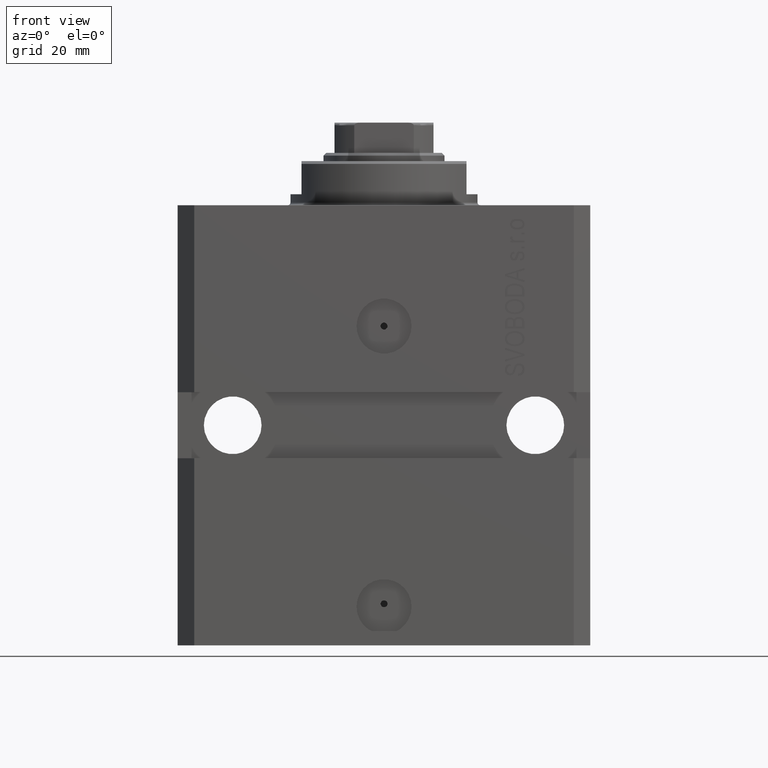
[diagram: clean part render]
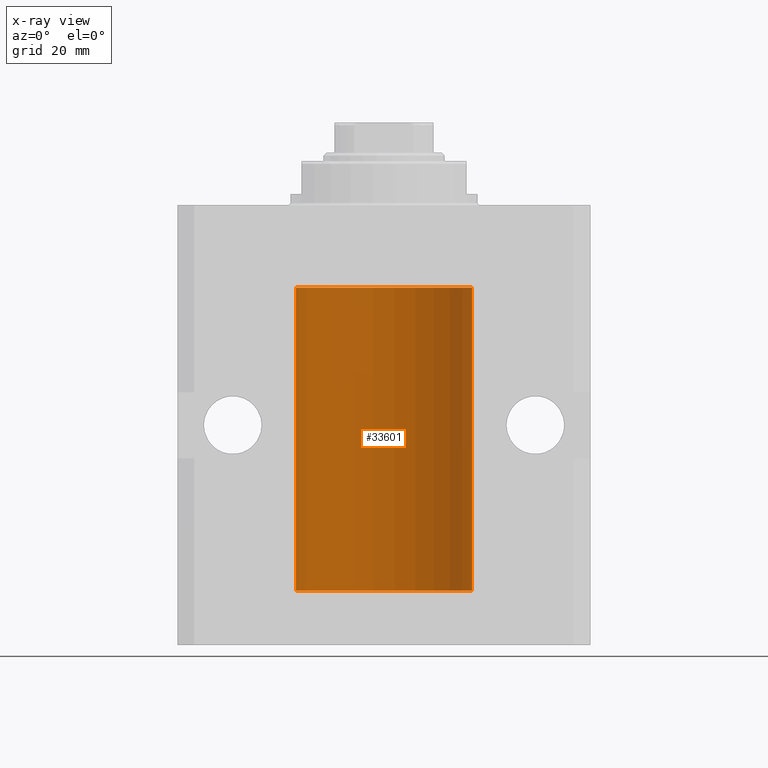
[diagram: x-ray — body ghosted, one internal face saturated and labeled with its STEP entity id]
A machine part, front view, then the same camera in x-ray: the body is ghosted and one INTERNAL B-rep face — a face not visible from any outside direction — is saturated and labeled: STEP entity #33601.
In plain terms, the highlighted cylindrical surface (partial cylindrical patch) has radius 16 mm, axis along (0, 0, 1).
Its self-contained STEP definition (entity closure, byte-faithful):
#5 = ORIENTED_EDGE ( 'NONE', *, *, #40359, .T. ) ;
#52 = CIRCLE ( 'NONE', #34611, 16.00000000000000000 ) ;
#96 = CARTESIAN_POINT ( 'NONE',  ( 16.00000000000000000, 0.000000000000000000, -70.09999999999999432 ) ) ;
#141 = CARTESIAN_POINT ( 'NONE',  ( -15.98779057735153586, 0.6249419637998054888, -67.83670145863507628 ) ) ;
#307 = CARTESIAN_POINT ( 'NONE',  ( -15.99711699979842017, 0.3253759916140657737, -22.55856151623175521 ) ) ;
#322 = LINE ( 'NONE', #96, #13743 ) ;
#586 = CARTESIAN_POINT ( 'NONE',  ( -15.99934216141748244, 0.1636497843296345067, -67.39126528029308361 ) ) ;
#1225 = CARTESIAN_POINT ( 'NONE',  ( 16.00000000000000000, 0.000000000000000000, -70.09999999999999432 ) ) ;
#1480 = VERTEX_POINT ( 'NONE', #16913 ) ;
#1690 = DIRECTION ( 'NONE',  ( -0.000000000000000000, -0.000000000000000000, 1.000000000000000000 ) ) ;
#1827 = CARTESIAN_POINT ( 'NONE',  ( 16.00000000000000000, 0.000000000000000000, -70.09999999999999432 ) ) ;
#3401 = CARTESIAN_POINT ( 'NONE',  ( 15.99707608081894783, 0.3151028052309810534, -22.54594170697727762 ) ) ;
#3627 = CARTESIAN_POINT ( 'NONE',  ( 16.00000000000000711, 0.08261762387942241104, -22.62499999999997158 ) ) ;
#4026 = CARTESIAN_POINT ( 'NONE',  ( 15.99707608081895138, 0.3151028052310259620, -68.54594170697733091 ) ) ;
#4123 = CARTESIAN_POINT ( 'NONE',  ( -15.98844267028591482, 0.6088369347963316081, -22.16324735024328518 ) ) ;
#4418 = EDGE_CURVE ( 'NONE', #24767, #1480, #42256, .T. ) ;
#5109 = DIRECTION ( 'NONE',  ( 1.000000000000000000, 0.000000000000000000, 0.000000000000000000 ) ) ;
#6060 = EDGE_LOOP ( 'NONE', ( #7741, #35834, #39573, #38147, #7973, #10867, #41930, #23667, #6604, #25298, #13851, #5, #39841, #28748 ) ) ;
#6494 = CARTESIAN_POINT ( 'NONE',  ( 15.99548458234361448, 0.3844468804816183471, -68.49947786696357355 ) ) ;
#6604 = ORIENTED_EDGE ( 'NONE', *, *, #23359, .T. ) ;
#6854 = DIRECTION ( 'NONE',  ( -0.000000000000000000, -0.000000000000000000, 1.000000000000000000 ) ) ;
#7008 = CARTESIAN_POINT ( 'NONE',  ( 15.98778830858101685, 0.6250000000001204592, -22.16311639173018833 ) ) ;
#7583 = LINE ( 'NONE', #21339, #13004 ) ;
#7730 = CARTESIAN_POINT ( 'NONE',  ( -16.00000000000000000, 0.1631714642025800244, -22.62499999999985789 ) ) ;
#7741 = ORIENTED_EDGE ( 'NONE', *, *, #4418, .F. ) ;
#7973 = ORIENTED_EDGE ( 'NONE', *, *, #26750, .T. ) ;
#8171 = CARTESIAN_POINT ( 'NONE',  ( -16.00000000000000000, 1.959434878635765131E-15, -70.09999999999999432 ) ) ;
#8784 = CIRCLE ( 'NONE', #9493, 16.00000000000000000 ) ;
#8943 = CARTESIAN_POINT ( 'NONE',  ( 0.000000000000000000, 0.000000000000000000, -70.09999999999999432 ) ) ;
#9302 = CARTESIAN_POINT ( 'NONE',  ( -16.00000000000000000, 1.959434878635765131E-15, -70.09999999999999432 ) ) ;
#9493 = AXIS2_PLACEMENT_3D ( 'NONE', #15242, #25614, #11417 ) ;
#9703 = DIRECTION ( 'NONE',  ( -0.000000000000000000, -0.000000000000000000, 1.000000000000000000 ) ) ;
#9757 = CARTESIAN_POINT ( 'NONE',  ( -16.00000000000000000, 1.643679961284177128E-16, -21.37499999999999645 ) ) ;
#9801 = EDGE_CURVE ( 'NONE', #20986, #27513, #19229, .T. ) ;
#10210 = VERTEX_POINT ( 'NONE', #27078 ) ;
#10354 = CARTESIAN_POINT ( 'NONE',  ( 16.00000000000001066, 0.08261762387943044628, -68.62500000000000000 ) ) ;
#10387 = CARTESIAN_POINT ( 'NONE',  ( 15.98844460043491367, 0.6087869699337551399, -67.83657454967556077 ) ) ;
#10628 = CARTESIAN_POINT ( 'NONE',  ( 15.99934183755190986, 0.1636877470526783007, -22.60872690654068151 ) ) ;
#10669 = VECTOR ( 'NONE', #22144, 1000.000000000000000 ) ;
#10741 = CARTESIAN_POINT ( 'NONE',  ( -16.00000000000000000, -9.346608026143465119E-15, -67.37500000000000000 ) ) ;
#10814 = B_SPLINE_CURVE_WITH_KNOTS ( 'NONE', 3,
 ( #17880, #35265, #11127, #38864, #25531, #18747, #11345, #18097 ),
 .UNSPECIFIED., .F., .F.,
 ( 4, 2, 2, 4 ),
 ( 0.0009773326288699728335, 0.001221554802188567438, 0.001465776975507162259, 0.001954221322144344530 ),
 .UNSPECIFIED. ) ;
#10867 = ORIENTED_EDGE ( 'NONE', *, *, #37211, .T. ) ;
#11127 = CARTESIAN_POINT ( 'NONE',  ( 15.98844460043492077, 0.6087869699336542206, -21.83657454967558564 ) ) ;
#11186 = CARTESIAN_POINT ( 'NONE',  ( -15.98844267028591126, 0.6088369347963314970, -68.16324735024328163 ) ) ;
#11345 = CARTESIAN_POINT ( 'NONE',  ( 15.99999999999999289, 0.1631343969470015476, -21.37500000000020606 ) ) ;
#11417 = DIRECTION ( 'NONE',  ( 1.000000000000000000, 0.000000000000000000, 0.000000000000000000 ) ) ;
#13004 = VECTOR ( 'NONE', #1690, 1000.000000000000000 ) ;
#13331 = CARTESIAN_POINT ( 'NONE',  ( 15.98778830858070954, 0.6250000000079481977, -21.99999999999914735 ) ) ;
#13724 = VECTOR ( 'NONE', #26668, 1000.000000000000000 ) ;
#13743 = VECTOR ( 'NONE', #6854, 1000.000000000000000 ) ;
#13851 = ORIENTED_EDGE ( 'NONE', *, *, #37102, .F. ) ;
#13904 = CARTESIAN_POINT ( 'NONE',  ( -15.99070426498502862, 0.5462220647145645813, -68.31460064614141459 ) ) ;
#13968 = CARTESIAN_POINT ( 'NONE',  ( 15.98778830858070954, 0.6250000000080517815, -67.99999999999916156 ) ) ;
#14193 = CARTESIAN_POINT ( 'NONE',  ( 16.00000000000000000, -1.835653844722709729E-15, -68.62500000000000000 ) ) ;
#14252 = B_SPLINE_CURVE_WITH_KNOTS ( 'NONE', 3,
 ( #32739, #30694, #10387, #31372, #41530, #34531, #30469, #16920 ),
 .UNSPECIFIED., .F., .F.,
 ( 4, 2, 2, 4 ),
 ( 0.0009773326288700682433, 0.001221554802188685399, 0.001465776975507302772, 0.001954221322144537518 ),
 .UNSPECIFIED. ) ;
#14354 = CARTESIAN_POINT ( 'NONE',  ( -15.99707730059171240, 0.3150375992092334654, -67.45402333202571299 ) ) ;
#14576 = CARTESIAN_POINT ( 'NONE',  ( -15.99070653155268040, 0.5573233280232966491, -67.67348148680505915 ) ) ;
#15025 = VERTEX_POINT ( 'NONE', #15840 ) ;
#15242 = CARTESIAN_POINT ( 'NONE',  ( 0.000000000000000000, 0.000000000000000000, -15.00000000000000000 ) ) ;
#15375 = B_SPLINE_CURVE_WITH_KNOTS ( 'NONE', 3,
 ( #17440, #34595, #35049, #27835, #31218, #30984, #28052, #38201, #4123, #41807, #17879, #307, #7730, #28279 ),
 .UNSPECIFIED., .F., .F.,
 ( 4, 2, 2, 2, 2, 2, 4 ),
 ( 1.597328219370744179E-19, 0.0002442776652680942405, 0.0004885553305361882643, 0.0009771106610723839011, 0.001221388326340481665, 0.001465665991608579430, 0.001954221322144767369 ),
 .UNSPECIFIED. ) ;
#15825 = CARTESIAN_POINT ( 'NONE',  ( -16.00000000000000000, -9.346608026143465119E-15, -67.37500000000000000 ) ) ;
#15840 = CARTESIAN_POINT ( 'NONE',  ( 16.00000000000013145, 3.665532684555111376E-13, -21.37499999999658229 ) ) ;
#16913 = CARTESIAN_POINT ( 'NONE',  ( -16.00000000000013145, 3.685127046438747128E-13, -68.62500000000343903 ) ) ;
#16920 = CARTESIAN_POINT ( 'NONE',  ( 16.00000000000013145, 3.665532692826917502E-13, -67.37499999999657518 ) ) ;
#16928 = DIRECTION ( 'NONE',  ( 0.000000000000000000, 0.000000000000000000, 1.000000000000000000 ) ) ;
#17109 = VECTOR ( 'NONE', #9703, 1000.000000000000000 ) ;
#17362 = B_SPLINE_CURVE_WITH_KNOTS ( 'NONE', 3,
 ( #10741, #42099, #586, #14354, #41877, #14576, #141, #28343, #11186, #13904, #21542, #20661, #30824, #44578 ),
 .UNSPECIFIED., .F., .F.,
 ( 4, 2, 2, 2, 2, 2, 4 ),
 ( 9.902737362640428303E-19, 0.0002442776652680895785, 0.0004885553305361781812, 0.0009771106610723552782, 0.001221388326340464752, 0.001465665991608574008, 0.001954221322144763465 ),
 .UNSPECIFIED. ) ;
#17440 = CARTESIAN_POINT ( 'NONE',  ( -16.00000000000000000, 1.643679961284177128E-16, -21.37499999999999645 ) ) ;
#17783 = CARTESIAN_POINT ( 'NONE',  ( 15.98778830858101685, 0.6250000000002223777, -68.16311639173024162 ) ) ;
#17876 = LINE ( 'NONE', #24417, #23352 ) ;
#17879 = CARTESIAN_POINT ( 'NONE',  ( -15.99228023727724413, 0.5003781296993413674, -22.38347829554236057 ) ) ;
#17880 = CARTESIAN_POINT ( 'NONE',  ( 15.98778830858070954, 0.6250000000079481977, -21.99999999999914735 ) ) ;
#18097 = CARTESIAN_POINT ( 'NONE',  ( 16.00000000000013145, 3.665532684555111376E-13, -21.37499999999658229 ) ) ;
#18438 = CARTESIAN_POINT ( 'NONE',  ( -16.00000000000013145, 3.685127034031037939E-13, -22.62500000000341771 ) ) ;
#18747 = CARTESIAN_POINT ( 'NONE',  ( 15.99711856062700122, 0.3252985083513915687, -21.44140297987714661 ) ) ;
#18763 = AXIS2_PLACEMENT_3D ( 'NONE', #8943, #32416, #5109 ) ;
#18782 = VERTEX_POINT ( 'NONE', #9757 ) ;
#18841 = VERTEX_POINT ( 'NONE', #25474 ) ;
#19229 = LINE ( 'NONE', #9302, #13724 ) ;
#19850 = CARTESIAN_POINT ( 'NONE',  ( 0.000000000000000000, 0.000000000000000000, -70.09999999999999432 ) ) ;
#20661 = CARTESIAN_POINT ( 'NONE',  ( -15.99711699979840951, 0.3253759916140645525, -68.55856151623176231 ) ) ;
#20986 = VERTEX_POINT ( 'NONE', #15825 ) ;
#21339 = CARTESIAN_POINT ( 'NONE',  ( -16.00000000000000000, 1.959434878635765131E-15, -70.09999999999999432 ) ) ;
#21542 = CARTESIAN_POINT ( 'NONE',  ( -15.99228023727723702, 0.5003781296993395911, -68.38347829554236057 ) ) ;
#22144 = DIRECTION ( 'NONE',  ( -0.000000000000000000, -0.000000000000000000, 1.000000000000000000 ) ) ;
#22699 = FACE_OUTER_BOUND ( 'NONE', #6060, .T. ) ;
#23352 = VECTOR ( 'NONE', #38197, 1000.000000000000000 ) ;
#23359 = EDGE_CURVE ( 'NONE', #15025, #34890, #17876, .T. ) ;
#23646 = CARTESIAN_POINT ( 'NONE',  ( 15.99070366873610283, 0.5574063959867601170, -68.32639436837555991 ) ) ;
#23667 = ORIENTED_EDGE ( 'NONE', *, *, #44246, .T. ) ;
#24110 = CARTESIAN_POINT ( 'NONE',  ( 15.99934183755190986, 0.1636877470527013101, -68.60872690654070993 ) ) ;
#24417 = CARTESIAN_POINT ( 'NONE',  ( 16.00000000000000000, 0.000000000000000000, -70.09999999999999432 ) ) ;
#24767 = VERTEX_POINT ( 'NONE', #44211 ) ;
#25084 = CARTESIAN_POINT ( 'NONE',  ( 15.98778830858070954, 0.6250000000080517815, -67.99999999999916156 ) ) ;
#25298 = ORIENTED_EDGE ( 'NONE', *, *, #40673, .T. ) ;
#25474 = CARTESIAN_POINT ( 'NONE',  ( 16.00000000000000000, -1.835653844722709729E-15, -68.62500000000000000 ) ) ;
#25531 = CARTESIAN_POINT ( 'NONE',  ( 15.99228275317787507, 0.5002975944204000047, -21.61642014570181303 ) ) ;
#25614 = DIRECTION ( 'NONE',  ( 0.000000000000000000, 0.000000000000000000, 1.000000000000000000 ) ) ;
#26668 = DIRECTION ( 'NONE',  ( -0.000000000000000000, -0.000000000000000000, 1.000000000000000000 ) ) ;
#26750 = EDGE_CURVE ( 'NONE', #35644, #10210, #14252, .T. ) ;
#27078 = CARTESIAN_POINT ( 'NONE',  ( 16.00000000000013145, 3.665532692826917502E-13, -67.37499999999657518 ) ) ;
#27513 = VERTEX_POINT ( 'NONE', #18438 ) ;
#27778 = EDGE_CURVE ( 'NONE', #20986, #1480, #17362, .T. ) ;
#27835 = CARTESIAN_POINT ( 'NONE',  ( -15.99707730059171240, 0.3150375992092407373, -21.45402333202571654 ) ) ;
#27943 = CARTESIAN_POINT ( 'NONE',  ( -16.00000000000000000, 1.959434878635765131E-15, -15.00000000000000000 ) ) ;
#28052 = CARTESIAN_POINT ( 'NONE',  ( -15.98779057735153941, 0.6249419637998100407, -21.83670145863507273 ) ) ;
#28279 = CARTESIAN_POINT ( 'NONE',  ( -16.00000000000013145, 3.685127034031037939E-13, -22.62500000000341771 ) ) ;
#28343 = CARTESIAN_POINT ( 'NONE',  ( -15.98778717651346426, 0.6250289588122136530, -68.08131585687053189 ) ) ;
#28748 = ORIENTED_EDGE ( 'NONE', *, *, #27778, .T. ) ;
#28983 = CARTESIAN_POINT ( 'NONE',  ( 15.98778830858070954, 0.6250000000079481977, -21.99999999999914735 ) ) ;
#29663 = CARTESIAN_POINT ( 'NONE',  ( 16.00000000000000000, 0.000000000000000000, -15.00000000000000000 ) ) ;
#30469 = CARTESIAN_POINT ( 'NONE',  ( 15.99999999999999645, 0.1631343969470158417, -67.37500000000021316 ) ) ;
#30694 = CARTESIAN_POINT ( 'NONE',  ( 15.98778830858103817, 0.6249999999997223332, -67.91847885046213662 ) ) ;
#30824 = CARTESIAN_POINT ( 'NONE',  ( -15.99999999999998934, 0.1631714642025807183, -68.62499999999984368 ) ) ;
#30984 = CARTESIAN_POINT ( 'NONE',  ( -15.99070653155267685, 0.5573233280232986475, -21.67348148680506625 ) ) ;
#31218 = CARTESIAN_POINT ( 'NONE',  ( -15.99548640841683067, 0.3843705577988847377, -21.50046628527008608 ) ) ;
#31372 = CARTESIAN_POINT ( 'NONE',  ( 15.99070695999103542, 0.5461439696927204990, -67.68526802364047512 ) ) ;
#31875 = EDGE_CURVE ( 'NONE', #43207, #18841, #42449, .T. ) ;
#32416 = DIRECTION ( 'NONE',  ( -0.000000000000000000, -0.000000000000000000, 1.000000000000000000 ) ) ;
#32636 = EDGE_CURVE ( 'NONE', #43207, #24767, #52, .T. ) ;
#32739 = CARTESIAN_POINT ( 'NONE',  ( 15.98778830858070954, 0.6250000000080517815, -67.99999999999916156 ) ) ;
#33601 = ADVANCED_FACE ( 'NONE', ( #22699 ), #43030, .F. ) ;
#34531 = CARTESIAN_POINT ( 'NONE',  ( 15.99711856062700477, 0.3252985083514284281, -67.44140297987711108 ) ) ;
#34595 = CARTESIAN_POINT ( 'NONE',  ( -16.00000000000000711, 0.08259886010189904093, -21.37500000000000000 ) ) ;
#34611 = AXIS2_PLACEMENT_3D ( 'NONE', #19850, #16928, #37462 ) ;
#34890 = VERTEX_POINT ( 'NONE', #29663 ) ;
#35049 = CARTESIAN_POINT ( 'NONE',  ( -15.99934216141748244, 0.1636497843296417787, -21.39126528029306229 ) ) ;
#35265 = CARTESIAN_POINT ( 'NONE',  ( 15.98778830858104172, 0.6249999999996183053, -21.91847885046212951 ) ) ;
#35644 = VERTEX_POINT ( 'NONE', #25084 ) ;
#35834 = ORIENTED_EDGE ( 'NONE', *, *, #32636, .F. ) ;
#35937 = EDGE_CURVE ( 'NONE', #18841, #35644, #39358, .T. ) ;
#36895 = CARTESIAN_POINT ( 'NONE',  ( 16.00000000000000000, 6.728408811789801767E-16, -22.62500000000000000 ) ) ;
#37102 = EDGE_CURVE ( 'NONE', #18782, #39830, #7583, .T. ) ;
#37211 = EDGE_CURVE ( 'NONE', #10210, #41898, #322, .T. ) ;
#37243 = CARTESIAN_POINT ( 'NONE',  ( 15.99548458234361092, 0.3844468804815581731, -22.49947786696349894 ) ) ;
#37462 = DIRECTION ( 'NONE',  ( 1.000000000000000000, 0.000000000000000000, 0.000000000000000000 ) ) ;
#37930 = CARTESIAN_POINT ( 'NONE',  ( 15.99070366873610993, 0.5574063959866685236, -22.32639436837549951 ) ) ;
#38147 = ORIENTED_EDGE ( 'NONE', *, *, #35937, .T. ) ;
#38197 = DIRECTION ( 'NONE',  ( -0.000000000000000000, -0.000000000000000000, 1.000000000000000000 ) ) ;
#38201 = CARTESIAN_POINT ( 'NONE',  ( -15.98778717651346071, 0.6250289588122140971, -22.08131585687052478 ) ) ;
#38864 = CARTESIAN_POINT ( 'NONE',  ( 15.99070695999104252, 0.5461439696926363441, -21.68526802364053552 ) ) ;
#39175 = VERTEX_POINT ( 'NONE', #28983 ) ;
#39358 = B_SPLINE_CURVE_WITH_KNOTS ( 'NONE', 3,
 ( #14193, #10354, #24110, #4026, #6494, #23646, #17783, #13968 ),
 .UNSPECIFIED., .F., .F.,
 ( 4, 2, 2, 4 ),
 ( 1.783888443149829469E-18, 0.0002443331572175257886, 0.0004886663144350497342, 0.0009773326288700682433 ),
 .UNSPECIFIED. ) ;
#39573 = ORIENTED_EDGE ( 'NONE', *, *, #31875, .T. ) ;
#39830 = VERTEX_POINT ( 'NONE', #27943 ) ;
#39841 = ORIENTED_EDGE ( 'NONE', *, *, #9801, .F. ) ;
#40359 = EDGE_CURVE ( 'NONE', #18782, #27513, #15375, .T. ) ;
#40673 = EDGE_CURVE ( 'NONE', #34890, #39830, #8784, .T. ) ;
#40935 = B_SPLINE_CURVE_WITH_KNOTS ( 'NONE', 3,
 ( #41544, #3627, #10628, #3401, #37243, #37930, #7008, #13331 ),
 .UNSPECIFIED., .F., .F.,
 ( 4, 2, 2, 4 ),
 ( 6.538667818360814107E-19, 0.0002443331572174917989, 0.0004886663144349829473, 0.0009773326288699728335 ),
 .UNSPECIFIED. ) ;
#41530 = CARTESIAN_POINT ( 'NONE',  ( 15.99228275317786441, 0.5002975944204781644, -67.61642014570176684 ) ) ;
#41544 = CARTESIAN_POINT ( 'NONE',  ( 16.00000000000000000, 6.728408811789801767E-16, -22.62500000000000000 ) ) ;
#41807 = CARTESIAN_POINT ( 'NONE',  ( -15.99070426498503217, 0.5462220647145618058, -22.31460064614143590 ) ) ;
#41877 = CARTESIAN_POINT ( 'NONE',  ( -15.99548640841682712, 0.3843705577988820732, -67.50046628527007897 ) ) ;
#41898 = VERTEX_POINT ( 'NONE', #36895 ) ;
#41930 = ORIENTED_EDGE ( 'NONE', *, *, #44342, .T. ) ;
#42099 = CARTESIAN_POINT ( 'NONE',  ( -16.00000000000000711, 0.08259886010189028405, -67.37500000000001421 ) ) ;
#42256 = LINE ( 'NONE', #8171, #10669 ) ;
#42449 = LINE ( 'NONE', #1827, #17109 ) ;
#43030 = CYLINDRICAL_SURFACE ( 'NONE', #18763, 16.00000000000000000 ) ;
#43207 = VERTEX_POINT ( 'NONE', #1225 ) ;
#44211 = CARTESIAN_POINT ( 'NONE',  ( -16.00000000000000000, 1.959434878635765131E-15, -70.09999999999999432 ) ) ;
#44246 = EDGE_CURVE ( 'NONE', #39175, #15025, #10814, .T. ) ;
#44342 = EDGE_CURVE ( 'NONE', #41898, #39175, #40935, .T. ) ;
#44578 = CARTESIAN_POINT ( 'NONE',  ( -16.00000000000013145, 3.685127046438747128E-13, -68.62500000000343903 ) ) ;